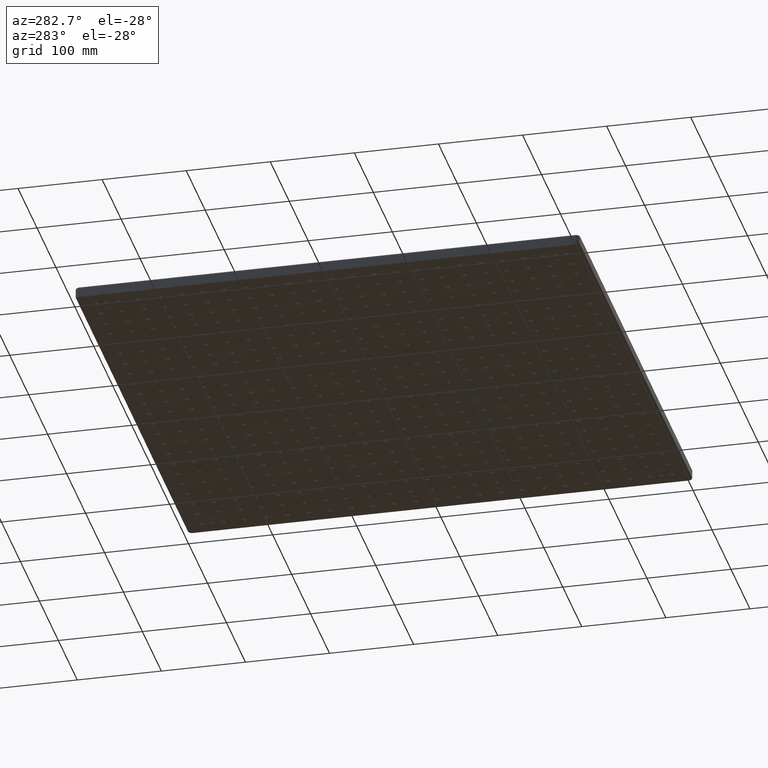
[diagram: clean part render]
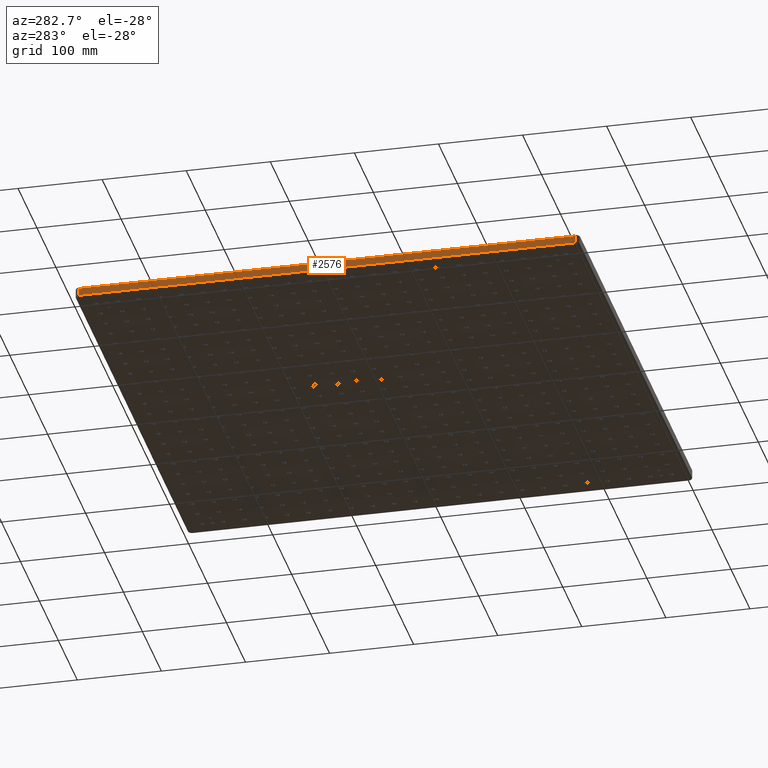
[diagram: same view with one face highlighted and labeled with its STEP entity id]
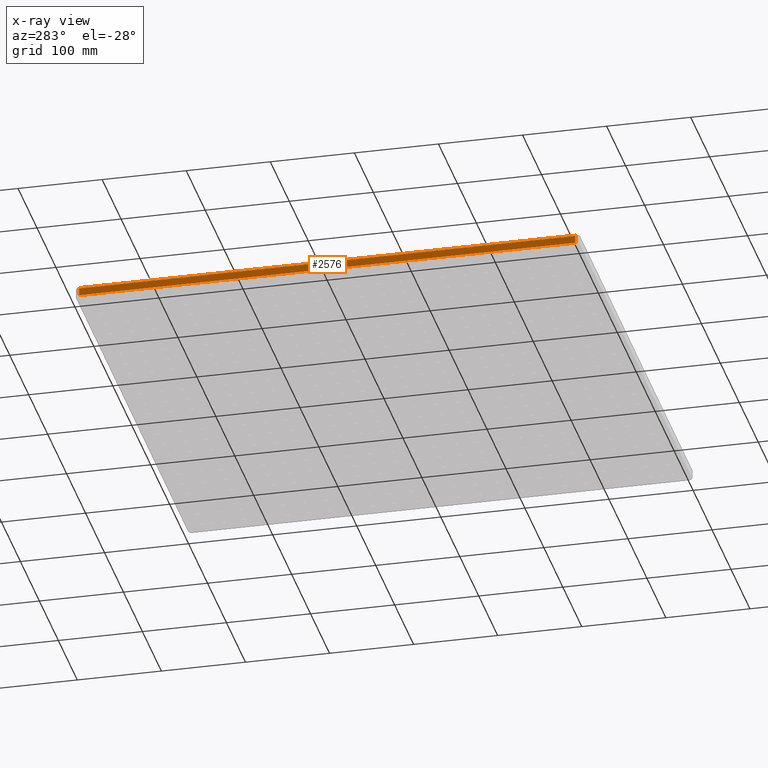
[diagram: x-ray of the same camera — body ghosted, the highlighted face saturated]
A machine part, auxiliary view. The second image highlights one B-rep face of the part: STEP entity #2576.
The next image is the same camera in x-ray: the body ghosted, the highlighted face saturated — about 0% of this face is hidden behind the body in this view.
In plain terms, the highlighted planar face has unit normal (-1, 0, 0).
Its self-contained STEP definition (entity closure, byte-faithful):
#636 = DIRECTION ( 'NONE',  ( 0.0000000000000000000, -1.000000000000000000, 0.0000000000000000000 ) ) ;
#1121 = LINE ( 'NONE', #11774, #1629 ) ;
#1629 = VECTOR ( 'NONE', #24069, 1000.000000000000000 ) ;
#2165 = VECTOR ( 'NONE', #30663, 1000.000000000000000 ) ;
#2308 = EDGE_LOOP ( 'NONE', ( #9616, #36041, #9027, #25638 ) ) ;
#2576 = ADVANCED_FACE ( 'NONE', ( #4243 ), #8335, .T. ) ;
#4243 = FACE_OUTER_BOUND ( 'NONE', #2308, .T. ) ;
#4925 = VERTEX_POINT ( 'NONE', #35396 ) ;
#6790 = CARTESIAN_POINT ( 'NONE',  ( -300.0000000000000600, -295.0000000000000600, -11.00000000000000000 ) ) ;
#6853 = EDGE_CURVE ( 'NONE', #4925, #39714, #1121, .T. ) ;
#7151 = LINE ( 'NONE', #6790, #38641 ) ;
#8335 = PLANE ( 'NONE',  #11133 ) ;
#9027 = ORIENTED_EDGE ( 'NONE', *, *, #15804, .T. ) ;
#9616 = ORIENTED_EDGE ( 'NONE', *, *, #6853, .F. ) ;
#11133 = AXIS2_PLACEMENT_3D ( 'NONE', #39577, #23630, #23882 ) ;
#11474 = LINE ( 'NONE', #24347, #2165 ) ;
#11774 = CARTESIAN_POINT ( 'NONE',  ( -300.0000000000000600, 295.0000000000000600, -13.00000000000000000 ) ) ;
#12996 = LINE ( 'NONE', #25165, #36665 ) ;
#15804 = EDGE_CURVE ( 'NONE', #37998, #16848, #11474, .T. ) ;
#16848 = VERTEX_POINT ( 'NONE', #21082 ) ;
#19423 = CARTESIAN_POINT ( 'NONE',  ( -300.0000000000000600, 295.0000000000000600, -2.000000000000001800 ) ) ;
#21082 = CARTESIAN_POINT ( 'NONE',  ( -300.0000000000000600, -295.0000000000000600, -2.000000000000003600 ) ) ;
#23630 = DIRECTION ( 'NONE',  ( -1.000000000000000000, 0.0000000000000000000, 0.0000000000000000000 ) ) ;
#23882 = DIRECTION ( 'NONE',  ( 0.0000000000000000000, 0.0000000000000000000, 1.000000000000000000 ) ) ;
#24069 = DIRECTION ( 'NONE',  ( 0.0000000000000000000, 0.0000000000000000000, 1.000000000000000000 ) ) ;
#24347 = CARTESIAN_POINT ( 'NONE',  ( -300.0000000000000600, -295.0000000000000600, -13.00000000000000000 ) ) ;
#25165 = CARTESIAN_POINT ( 'NONE',  ( -300.0000000000000600, 295.0000000000000600, -2.000000000000000000 ) ) ;
#25638 = ORIENTED_EDGE ( 'NONE', *, *, #38114, .T. ) ;
#30663 = DIRECTION ( 'NONE',  ( 0.0000000000000000000, 0.0000000000000000000, 1.000000000000000000 ) ) ;
#32972 = EDGE_CURVE ( 'NONE', #4925, #37998, #7151, .T. ) ;
#35396 = CARTESIAN_POINT ( 'NONE',  ( -300.0000000000000600, 295.0000000000000600, -11.00000000000000000 ) ) ;
#36041 = ORIENTED_EDGE ( 'NONE', *, *, #32972, .T. ) ;
#36665 = VECTOR ( 'NONE', #37522, 1000.000000000000000 ) ;
#36973 = CARTESIAN_POINT ( 'NONE',  ( -300.0000000000000600, -295.0000000000000600, -11.00000000000000000 ) ) ;
#37522 = DIRECTION ( 'NONE',  ( -0.0000000000000000000, 1.000000000000000000, -0.0000000000000000000 ) ) ;
#37998 = VERTEX_POINT ( 'NONE', #36973 ) ;
#38114 = EDGE_CURVE ( 'NONE', #16848, #39714, #12996, .T. ) ;
#38641 = VECTOR ( 'NONE', #636, 1000.000000000000000 ) ;
#39577 = CARTESIAN_POINT ( 'NONE',  ( -300.0000000000000600, -295.0000000000000600, -13.00000000000000000 ) ) ;
#39714 = VERTEX_POINT ( 'NONE', #19423 ) ;